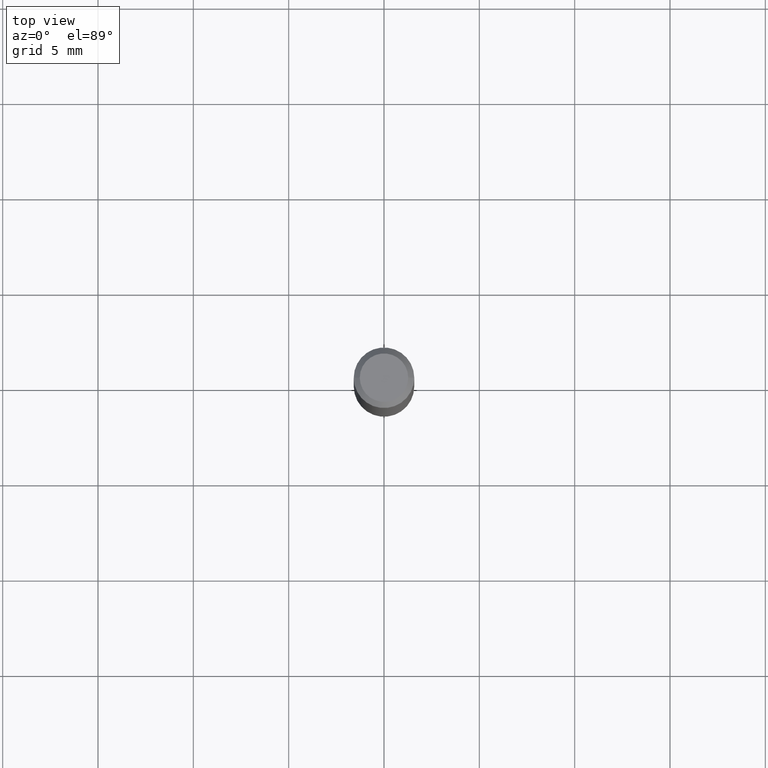
[diagram: clean part render]
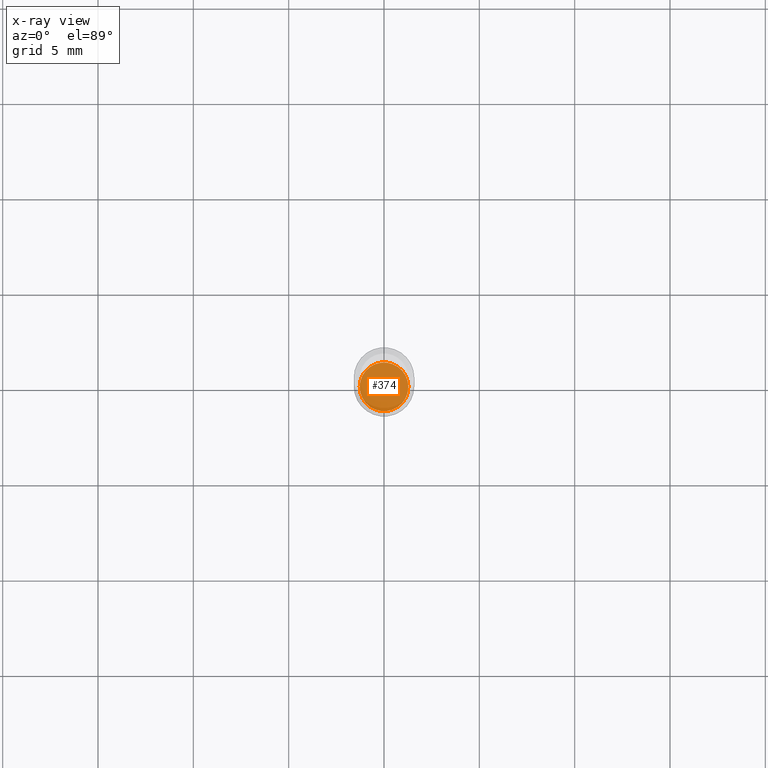
[diagram: x-ray — body ghosted, one internal face saturated and labeled with its STEP entity id]
A machine part, top view, then the same camera in x-ray: the body is ghosted and one INTERNAL B-rep face — a face not visible from any outside direction — is saturated and labeled: STEP entity #374.
In plain terms, the highlighted planar face has unit normal (-0, 0, 1).
Its self-contained STEP definition (entity closure, byte-faithful):
#67 = DIRECTION ( 'NONE',  ( -2.445468806185136597E-29, 3.491481338843145583E-15, 1.000000000000000000 ) ) ;
#69 = DIRECTION ( 'NONE',  ( 1.000000000000000000, -6.982962677686265922E-15, 4.876176775795935793E-29 ) ) ;
#90 = EDGE_LOOP ( 'NONE', ( #175, #211 ) ) ;
#92 = VERTEX_POINT ( 'NONE', #431 ) ;
#107 = AXIS2_PLACEMENT_3D ( 'NONE', #406, #67, #210 ) ;
#148 = PLANE ( 'NONE',  #154 ) ;
#154 = AXIS2_PLACEMENT_3D ( 'NONE', #445, #296, #69 ) ;
#175 = ORIENTED_EDGE ( 'NONE', *, *, #229, .F. ) ;
#181 = FACE_OUTER_BOUND ( 'NONE', #90, .T. ) ;
#200 = CARTESIAN_POINT ( 'NONE',  ( 2.690015686803650369E-29, -3.840629472727460101E-15, -1.100000000000000089 ) ) ;
#210 = DIRECTION ( 'NONE',  ( 1.000000000000000000, -6.982962677686269866E-15, 0.000000000000000000 ) ) ;
#211 = ORIENTED_EDGE ( 'NONE', *, *, #408, .F. ) ;
#229 = EDGE_CURVE ( 'NONE', #92, #369, #455, .T. ) ;
#296 = DIRECTION ( 'NONE',  ( -2.438088387897960049E-29, 3.491481338843145188E-15, 1.000000000000000000 ) ) ;
#339 = AXIS2_PLACEMENT_3D ( 'NONE', #200, #462, #352 ) ;
#352 = DIRECTION ( 'NONE',  ( 1.000000000000000000, -6.982962677686269866E-15, 0.000000000000000000 ) ) ;
#369 = VERTEX_POINT ( 'NONE', #409 ) ;
#374 = ADVANCED_FACE ( 'NONE', ( #181 ), #148, .F. ) ;
#406 = CARTESIAN_POINT ( 'NONE',  ( 2.690015686803650369E-29, -3.840629472727460101E-15, -1.100000000000000089 ) ) ;
#408 = EDGE_CURVE ( 'NONE', #369, #92, #433, .T. ) ;
#409 = CARTESIAN_POINT ( 'NONE',  ( -0.05025000000000000300, -3.480932520833898437E-15, -1.100000000000000089 ) ) ;
#431 = CARTESIAN_POINT ( 'NONE',  ( 0.05025000000000000300, -4.191523347281194941E-15, -1.100000000000000089 ) ) ;
#433 = CIRCLE ( 'NONE', #107, 0.05025000000000000300 ) ;
#445 = CARTESIAN_POINT ( 'NONE',  ( 2.690015686803650369E-29, -3.840629472727460101E-15, -1.100000000000000089 ) ) ;
#455 = CIRCLE ( 'NONE', #339, 0.05025000000000000300 ) ;
#462 = DIRECTION ( 'NONE',  ( -2.445468806185136597E-29, 3.491481338843145583E-15, 1.000000000000000000 ) ) ;